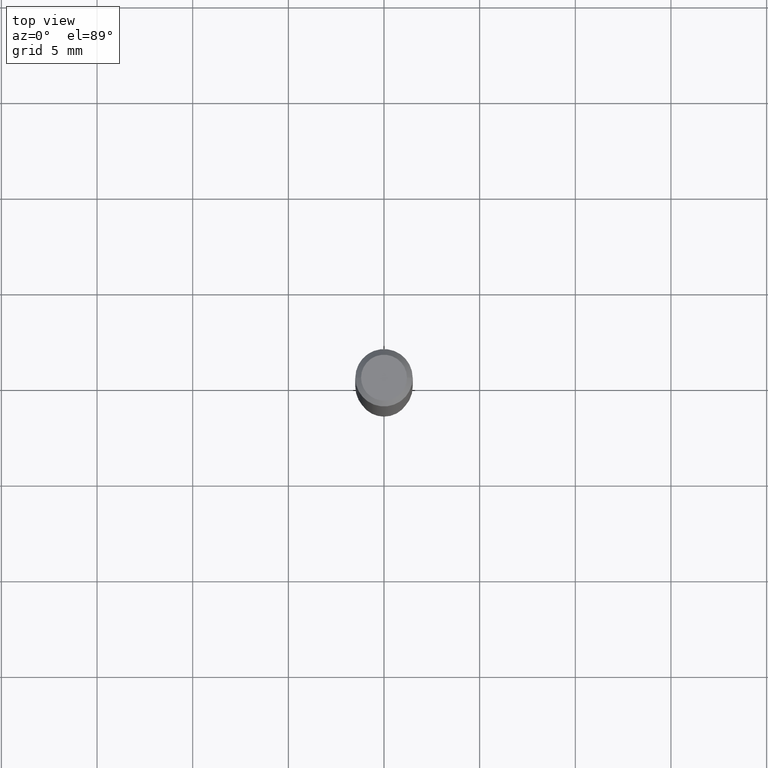
[diagram: clean part render]
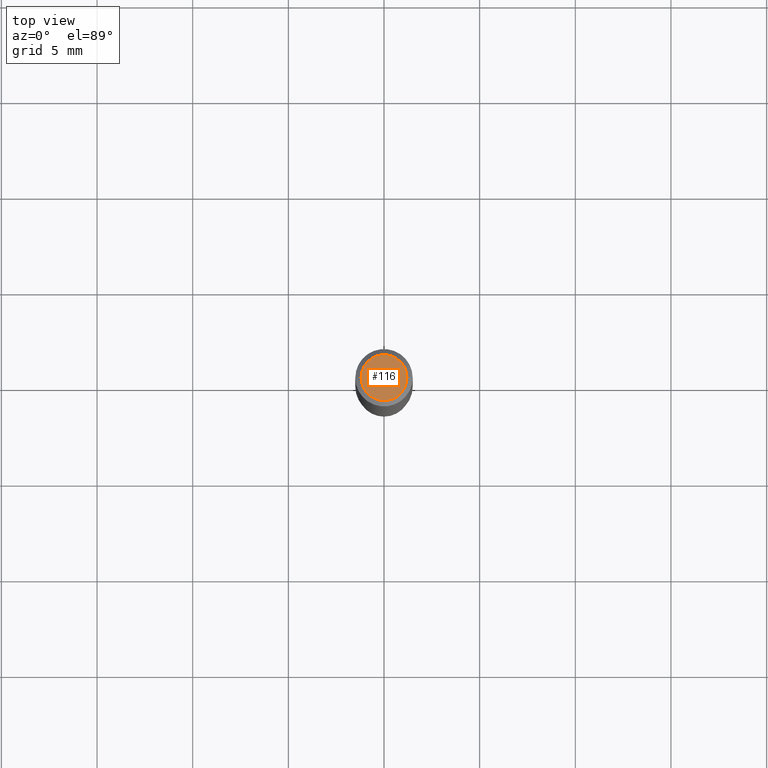
[diagram: same view with one face highlighted and labeled with its STEP entity id]
A machine part, top view. The second image highlights one B-rep face of the part: STEP entity #116.
In plain terms, the highlighted planar face has unit normal (0, -0, -1).
Its self-contained STEP definition (entity closure, byte-faithful):
#69 = EDGE_CURVE ( 'NONE', #113, #285, #192, .T. ) ;
#70 = FACE_OUTER_BOUND ( 'NONE', #477, .T. ) ;
#76 = CARTESIAN_POINT ( 'NONE',  ( 0.04724000000000000421, -3.852183633974369345E-16, -3.380025165621689721E-19 ) ) ;
#113 = VERTEX_POINT ( 'NONE', #414 ) ;
#116 = ADVANCED_FACE ( 'NONE', ( #70 ), #377, .F. ) ;
#129 = ORIENTED_EDGE ( 'NONE', *, *, #349, .T. ) ;
#138 = DIRECTION ( 'NONE',  ( 1.000000000000000000, -6.982962677686266711E-15, 4.876185090822587894E-29 ) ) ;
#185 = AXIS2_PLACEMENT_3D ( 'NONE', #214, #333, #480 ) ;
#192 = CIRCLE ( 'NONE', #265, 0.04724000000000000421 ) ;
#214 = CARTESIAN_POINT ( 'NONE',  ( 4.132873053354867254E-48, -5.900647395337818946E-34, -1.690012582823346072E-19 ) ) ;
#262 = DIRECTION ( 'NONE',  ( -2.445468806185136597E-29, 3.491481338843145583E-15, 1.000000000000000000 ) ) ;
#265 = AXIS2_PLACEMENT_3D ( 'NONE', #488, #262, #402 ) ;
#285 = VERTEX_POINT ( 'NONE', #76 ) ;
#332 = AXIS2_PLACEMENT_3D ( 'NONE', #366, #437, #138 ) ;
#333 = DIRECTION ( 'NONE',  ( 2.438088387897960049E-29, -3.491481338843145188E-15, -1.000000000000000000 ) ) ;
#349 = EDGE_CURVE ( 'NONE', #285, #113, #456, .T. ) ;
#366 = CARTESIAN_POINT ( 'NONE',  ( 8.265746106709734507E-48, -1.180129479067563789E-33, -3.380025165646692144E-19 ) ) ;
#377 = PLANE ( 'NONE',  #185 ) ;
#402 = DIRECTION ( 'NONE',  ( 1.000000000000000000, -6.982962677686266711E-15, 4.876185090822587894E-29 ) ) ;
#414 = CARTESIAN_POINT ( 'NONE',  ( -0.04724000000000000421, 3.504923541997677355E-16, -3.380025165670481712E-19 ) ) ;
#437 = DIRECTION ( 'NONE',  ( -2.445468806185136597E-29, 3.491481338843145583E-15, 1.000000000000000000 ) ) ;
#456 = CIRCLE ( 'NONE', #332, 0.04724000000000000421 ) ;
#466 = ORIENTED_EDGE ( 'NONE', *, *, #69, .T. ) ;
#477 = EDGE_LOOP ( 'NONE', ( #466, #129 ) ) ;
#480 = DIRECTION ( 'NONE',  ( -1.000000000000000000, 6.982962677686265922E-15, -4.876176775795935793E-29 ) ) ;
#488 = CARTESIAN_POINT ( 'NONE',  ( 8.265746106709734507E-48, -1.180129479067563789E-33, -3.380025165646692144E-19 ) ) ;